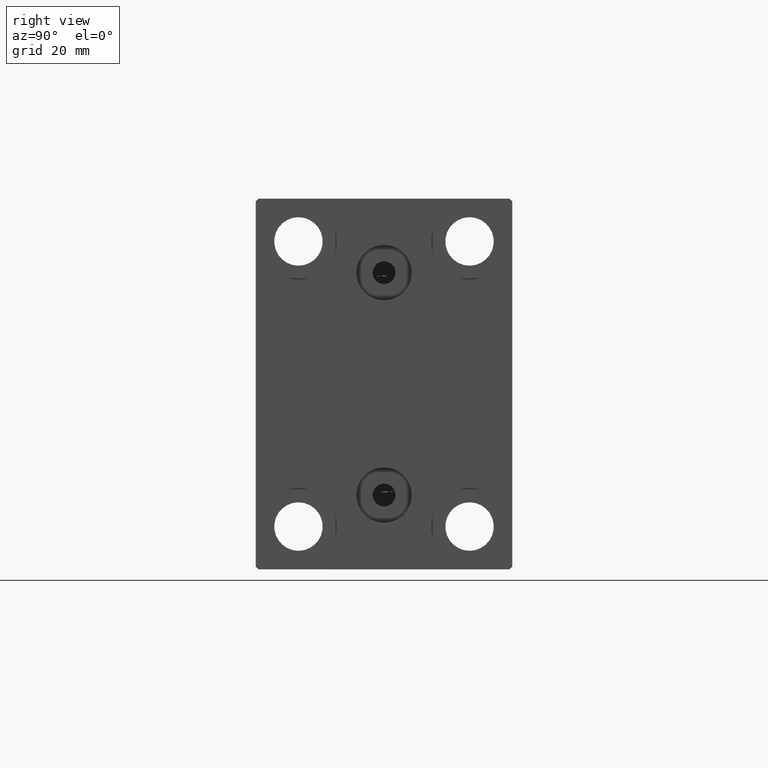
[diagram: clean part render]
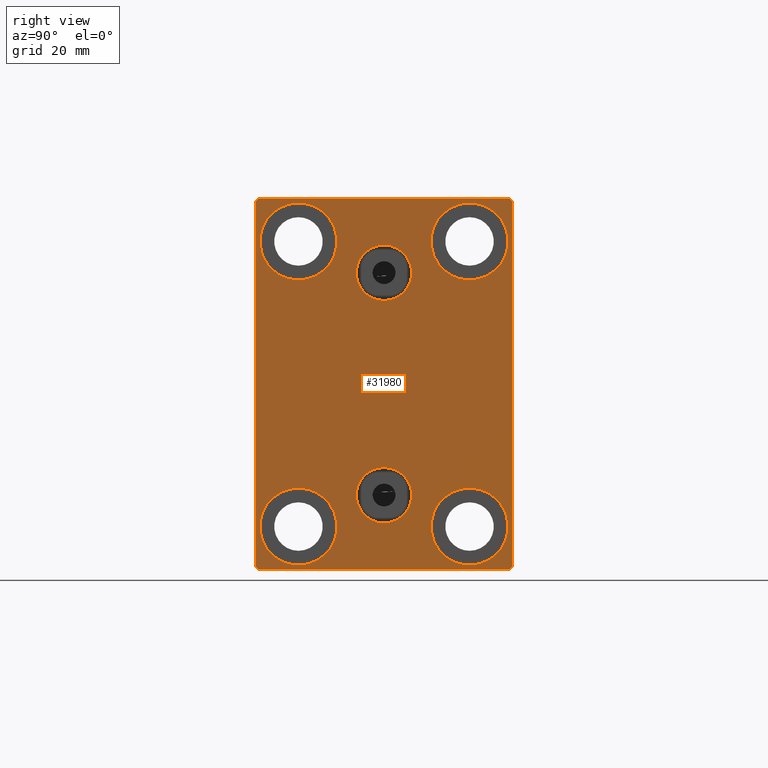
[diagram: same view with one face highlighted and labeled with its STEP entity id]
A machine part, right view. The second image highlights one B-rep face of the part: STEP entity #31980.
In plain terms, the highlighted planar face has unit normal (1, 0, 0).
Its self-contained STEP definition (entity closure, byte-faithful):
#41 = ORIENTED_EDGE ( 'NONE', *, *, #14915, .T. ) ;
#108 = CARTESIAN_POINT ( 'NONE',  ( 90.00000000000000000, -22.00000000000002132, -32.50000000000000711 ) ) ;
#372 = DIRECTION ( 'NONE',  ( 0.000000000000000000, 0.000000000000000000, -1.000000000000000000 ) ) ;
#1095 = CARTESIAN_POINT ( 'NONE',  ( 90.00000000000000000, 14.99999999999999645, -25.00000000000000000 ) ) ;
#1415 = ORIENTED_EDGE ( 'NONE', *, *, #14370, .F. ) ;
#2478 = DIRECTION ( 'NONE',  ( -1.000000000000000000, -0.000000000000000000, -0.000000000000000000 ) ) ;
#2570 = DIRECTION ( 'NONE',  ( 0.000000000000000000, -1.067522139062650425E-16, 1.000000000000000000 ) ) ;
#2592 = CIRCLE ( 'NONE', #18832, 6.749999999999999112 ) ;
#2625 = FACE_OUTER_BOUND ( 'NONE', #17699, .T. ) ;
#2682 = CARTESIAN_POINT ( 'NONE',  ( 90.00000000000000000, -27.25000000000061817, -27.24999999999910827 ) ) ;
#2919 = EDGE_CURVE ( 'NONE', #18833, #16570, #4386, .T. ) ;
#2925 = DIRECTION ( 'NONE',  ( 0.000000000000000000, 0.000000000000000000, -1.000000000000000000 ) ) ;
#2963 = AXIS2_PLACEMENT_3D ( 'NONE', #12396, #25906, #6171 ) ;
#2973 = ORIENTED_EDGE ( 'NONE', *, *, #32748, .T. ) ;
#3980 = CARTESIAN_POINT ( 'NONE',  ( 90.00000000000000000, 2.983239602722951428E-15, -14.63999999999999702 ) ) ;
#4386 = CIRCLE ( 'NONE', #5833, 4.859999999999999432 ) ;
#4441 = AXIS2_PLACEMENT_3D ( 'NONE', #6195, #9742, #18821 ) ;
#4449 = CARTESIAN_POINT ( 'NONE',  ( 90.00000000000000000, 14.99999999999999645, -31.75000000000000000 ) ) ;
#4555 = CARTESIAN_POINT ( 'NONE',  ( 90.00000000000000000, -3.571693674697836683E-15, 19.50000000000000355 ) ) ;
#5030 = CARTESIAN_POINT ( 'NONE',  ( 90.00000000000000000, -27.24999999999984368, 27.25000000000022382 ) ) ;
#5196 = VERTEX_POINT ( 'NONE', #35276 ) ;
#5400 = VECTOR ( 'NONE', #31681, 1000.000000000000000 ) ;
#5639 = EDGE_CURVE ( 'NONE', #16570, #18833, #17208, .T. ) ;
#5739 = FACE_BOUND ( 'NONE', #24812, .T. ) ;
#5833 = AXIS2_PLACEMENT_3D ( 'NONE', #42417, #12082, #42196 ) ;
#6171 = DIRECTION ( 'NONE',  ( 0.000000000000000000, 0.000000000000000000, -1.000000000000000000 ) ) ;
#6195 = CARTESIAN_POINT ( 'NONE',  ( 90.00000000000000000, 2.388061258337338150E-15, -19.49999999999999645 ) ) ;
#6803 = EDGE_CURVE ( 'NONE', #27836, #32145, #7330, .T. ) ;
#6823 = CARTESIAN_POINT ( 'NONE',  ( 90.00000000000000000, -14.99999999999999645, 25.00000000000000000 ) ) ;
#7330 = CIRCLE ( 'NONE', #38445, 6.749999999999999112 ) ;
#7403 = CARTESIAN_POINT ( 'NONE',  ( 90.00000000000000000, 2.388061258337338150E-15, -24.35999999999999588 ) ) ;
#7704 = LINE ( 'NONE', #21229, #30705 ) ;
#7847 = AXIS2_PLACEMENT_3D ( 'NONE', #1095, #18578, #25234 ) ;
#8051 = CARTESIAN_POINT ( 'NONE',  ( 90.00000000000000000, -21.99999999999998579, 32.49999999999999289 ) ) ;
#8405 = ORIENTED_EDGE ( 'NONE', *, *, #28974, .T. ) ;
#8479 = ORIENTED_EDGE ( 'NONE', *, *, #5639, .F. ) ;
#8948 = VERTEX_POINT ( 'NONE', #12113 ) ;
#9707 = CARTESIAN_POINT ( 'NONE',  ( 90.00000000000000000, 15.00000000000000355, 25.00000000000000000 ) ) ;
#9742 = DIRECTION ( 'NONE',  ( 1.000000000000000000, 0.000000000000000000, -0.000000000000000000 ) ) ;
#10531 = VERTEX_POINT ( 'NONE', #17174 ) ;
#10561 = AXIS2_PLACEMENT_3D ( 'NONE', #13110, #40332, #33042 ) ;
#11031 = EDGE_CURVE ( 'NONE', #39635, #8948, #2592, .T. ) ;
#11216 = VECTOR ( 'NONE', #30797, 1000.000000000000000 ) ;
#11278 = AXIS2_PLACEMENT_3D ( 'NONE', #22981, #36483, #29835 ) ;
#11305 = CARTESIAN_POINT ( 'NONE',  ( 90.00000000000000000, 27.25000000000045475, 27.24999999999932143 ) ) ;
#11426 = LINE ( 'NONE', #42200, #37120 ) ;
#11477 = CARTESIAN_POINT ( 'NONE',  ( 90.00000000000000000, 22.49999999999999289, 31.99999999999997868 ) ) ;
#11883 = EDGE_CURVE ( 'NONE', #35381, #10531, #35435, .T. ) ;
#11938 = LINE ( 'NONE', #38953, #35311 ) ;
#12082 = DIRECTION ( 'NONE',  ( 1.000000000000000000, 0.000000000000000000, -0.000000000000000000 ) ) ;
#12113 = CARTESIAN_POINT ( 'NONE',  ( 90.00000000000000000, -14.99999999999999645, 18.25000000000000355 ) ) ;
#12288 = CARTESIAN_POINT ( 'NONE',  ( 90.00000000000000000, 14.99999999999999645, -25.00000000000000000 ) ) ;
#12396 = CARTESIAN_POINT ( 'NONE',  ( 90.00000000000000000, 0.000000000000000000, 0.000000000000000000 ) ) ;
#12609 = VERTEX_POINT ( 'NONE', #15260 ) ;
#12614 = CARTESIAN_POINT ( 'NONE',  ( 90.00000000000000000, 15.00000000000000355, 31.75000000000000000 ) ) ;
#12844 = CARTESIAN_POINT ( 'NONE',  ( 90.00000000000000000, -22.50000000000000711, 31.99999999999999289 ) ) ;
#13110 = CARTESIAN_POINT ( 'NONE',  ( 90.00000000000000000, -15.00000000000000355, -25.00000000000000000 ) ) ;
#14307 = AXIS2_PLACEMENT_3D ( 'NONE', #12288, #19371, #32891 ) ;
#14370 = EDGE_CURVE ( 'NONE', #35289, #22058, #28830, .T. ) ;
#14915 = EDGE_CURVE ( 'NONE', #5196, #41459, #29573, .T. ) ;
#15260 = CARTESIAN_POINT ( 'NONE',  ( 90.00000000000000000, 14.99999999999999645, -18.25000000000000355 ) ) ;
#15521 = EDGE_CURVE ( 'NONE', #22058, #35289, #21090, .T. ) ;
#15524 = ORIENTED_EDGE ( 'NONE', *, *, #18975, .T. ) ;
#16274 = DIRECTION ( 'NONE',  ( 0.000000000000000000, 0.000000000000000000, 1.000000000000000000 ) ) ;
#16292 = VERTEX_POINT ( 'NONE', #33902 ) ;
#16447 = VERTEX_POINT ( 'NONE', #108 ) ;
#16570 = VERTEX_POINT ( 'NONE', #7403 ) ;
#16748 = CARTESIAN_POINT ( 'NONE',  ( 90.00000000000000000, 15.00000000000000355, 25.00000000000000000 ) ) ;
#17093 = VECTOR ( 'NONE', #2570, 1000.000000000000000 ) ;
#17174 = CARTESIAN_POINT ( 'NONE',  ( 90.00000000000000000, 21.99999999999999289, 32.50000000000000000 ) ) ;
#17208 = CIRCLE ( 'NONE', #4441, 4.859999999999999432 ) ;
#17658 = CIRCLE ( 'NONE', #11278, 6.749999999999999112 ) ;
#17699 = EDGE_LOOP ( 'NONE', ( #15524, #36732, #20664, #34698, #31065, #20112, #42212, #37053 ) ) ;
#17914 = EDGE_CURVE ( 'NONE', #33263, #23395, #37223, .T. ) ;
#18353 = DIRECTION ( 'NONE',  ( 0.000000000000000000, -1.000000000000000000, -1.541976423090495387E-16 ) ) ;
#18578 = DIRECTION ( 'NONE',  ( -1.000000000000000000, -0.000000000000000000, -0.000000000000000000 ) ) ;
#18821 = DIRECTION ( 'NONE',  ( 0.000000000000000000, 0.000000000000000000, 1.000000000000000000 ) ) ;
#18832 = AXIS2_PLACEMENT_3D ( 'NONE', #6823, #2478, #33864 ) ;
#18833 = VERTEX_POINT ( 'NONE', #3980 ) ;
#18975 = EDGE_CURVE ( 'NONE', #10531, #26436, #11938, .T. ) ;
#19022 = FACE_BOUND ( 'NONE', #34141, .T. ) ;
#19152 = CIRCLE ( 'NONE', #7847, 6.749999999999999112 ) ;
#19371 = DIRECTION ( 'NONE',  ( -1.000000000000000000, -0.000000000000000000, -0.000000000000000000 ) ) ;
#19527 = DIRECTION ( 'NONE',  ( -0.000000000000000000, 0.7071067811865279218, -0.7071067811865671127 ) ) ;
#19894 = ORIENTED_EDGE ( 'NONE', *, *, #11031, .T. ) ;
#20112 = ORIENTED_EDGE ( 'NONE', *, *, #41616, .T. ) ;
#20664 = ORIENTED_EDGE ( 'NONE', *, *, #17914, .T. ) ;
#21059 = ORIENTED_EDGE ( 'NONE', *, *, #6803, .T. ) ;
#21090 = CIRCLE ( 'NONE', #33123, 4.859999999999999432 ) ;
#21229 = CARTESIAN_POINT ( 'NONE',  ( 90.00000000000000000, 27.24999999999985434, -27.25000000000023093 ) ) ;
#21872 = LINE ( 'NONE', #5030, #31422 ) ;
#22058 = VERTEX_POINT ( 'NONE', #22563 ) ;
#22491 = AXIS2_PLACEMENT_3D ( 'NONE', #42865, #39543, #16274 ) ;
#22563 = CARTESIAN_POINT ( 'NONE',  ( 90.00000000000000000, -2.976515330312223406E-15, 24.36000000000000298 ) ) ;
#22981 = CARTESIAN_POINT ( 'NONE',  ( 90.00000000000000000, -14.99999999999999645, 25.00000000000000000 ) ) ;
#23025 = FACE_BOUND ( 'NONE', #26389, .T. ) ;
#23146 = EDGE_CURVE ( 'NONE', #41459, #5196, #31077, .T. ) ;
#23237 = FACE_BOUND ( 'NONE', #29753, .T. ) ;
#23327 = ORIENTED_EDGE ( 'NONE', *, *, #2919, .F. ) ;
#23395 = VERTEX_POINT ( 'NONE', #25456 ) ;
#24301 = DIRECTION ( 'NONE',  ( 1.000000000000000000, 0.000000000000000000, 0.000000000000000000 ) ) ;
#24517 = EDGE_CURVE ( 'NONE', #8948, #39635, #17658, .T. ) ;
#24812 = EDGE_LOOP ( 'NONE', ( #1415, #27557 ) ) ;
#25228 = ORIENTED_EDGE ( 'NONE', *, *, #38023, .T. ) ;
#25234 = DIRECTION ( 'NONE',  ( 0.000000000000000000, 0.000000000000000000, 1.000000000000000000 ) ) ;
#25456 = CARTESIAN_POINT ( 'NONE',  ( 90.00000000000000000, -22.50000000000000711, -31.99999999999999289 ) ) ;
#25906 = DIRECTION ( 'NONE',  ( 1.000000000000000000, 0.000000000000000000, 0.000000000000000000 ) ) ;
#26291 = LINE ( 'NONE', #39789, #17093 ) ;
#26389 = EDGE_LOOP ( 'NONE', ( #34637, #19894 ) ) ;
#26436 = VERTEX_POINT ( 'NONE', #8051 ) ;
#26724 = VERTEX_POINT ( 'NONE', #4449 ) ;
#26777 = CARTESIAN_POINT ( 'NONE',  ( 90.00000000000000000, 15.00000000000000355, 18.25000000000000355 ) ) ;
#27414 = ORIENTED_EDGE ( 'NONE', *, *, #23146, .T. ) ;
#27557 = ORIENTED_EDGE ( 'NONE', *, *, #15521, .F. ) ;
#27663 = VECTOR ( 'NONE', #19527, 1000.000000000000000 ) ;
#27836 = VERTEX_POINT ( 'NONE', #26777 ) ;
#28830 = CIRCLE ( 'NONE', #43675, 4.859999999999999432 ) ;
#28849 = EDGE_CURVE ( 'NONE', #23395, #16447, #39906, .T. ) ;
#28974 = EDGE_CURVE ( 'NONE', #26724, #12609, #19152, .T. ) ;
#29077 = DIRECTION ( 'NONE',  ( 1.000000000000000000, 0.000000000000000000, 0.000000000000000000 ) ) ;
#29573 = CIRCLE ( 'NONE', #22491, 6.749999999999999112 ) ;
#29586 = VERTEX_POINT ( 'NONE', #35476 ) ;
#29753 = EDGE_LOOP ( 'NONE', ( #8405, #2973 ) ) ;
#29835 = DIRECTION ( 'NONE',  ( 0.000000000000000000, 0.000000000000000000, 1.000000000000000000 ) ) ;
#30269 = DIRECTION ( 'NONE',  ( -1.000000000000000000, -0.000000000000000000, -0.000000000000000000 ) ) ;
#30705 = VECTOR ( 'NONE', #34956, 1000.000000000000000 ) ;
#30737 = AXIS2_PLACEMENT_3D ( 'NONE', #16748, #30269, #37346 ) ;
#30797 = DIRECTION ( 'NONE',  ( 0.000000000000000000, 0.000000000000000000, -1.000000000000000000 ) ) ;
#31065 = ORIENTED_EDGE ( 'NONE', *, *, #43136, .T. ) ;
#31077 = CIRCLE ( 'NONE', #10561, 6.749999999999999112 ) ;
#31422 = VECTOR ( 'NONE', #35387, 999.9999999999998863 ) ;
#31625 = EDGE_CURVE ( 'NONE', #16292, #35381, #26291, .T. ) ;
#31681 = DIRECTION ( 'NONE',  ( -0.000000000000000000, -0.7071067811865328068, 0.7071067811865622277 ) ) ;
#31980 = ADVANCED_FACE ( 'NONE', ( #5739, #39406, #23237, #23025, #19022, #32985, #2625 ), #43162, .T. ) ;
#32145 = VERTEX_POINT ( 'NONE', #12614 ) ;
#32333 = EDGE_LOOP ( 'NONE', ( #8479, #23327 ) ) ;
#32748 = EDGE_CURVE ( 'NONE', #12609, #26724, #43309, .T. ) ;
#32891 = DIRECTION ( 'NONE',  ( 0.000000000000000000, 0.000000000000000000, 1.000000000000000000 ) ) ;
#32985 = FACE_BOUND ( 'NONE', #36889, .T. ) ;
#33042 = DIRECTION ( 'NONE',  ( 0.000000000000000000, 0.000000000000000000, 1.000000000000000000 ) ) ;
#33123 = AXIS2_PLACEMENT_3D ( 'NONE', #4555, #24301, #372 ) ;
#33263 = VERTEX_POINT ( 'NONE', #12844 ) ;
#33291 = CARTESIAN_POINT ( 'NONE',  ( 90.00000000000000000, -3.571693674697836683E-15, 19.50000000000000355 ) ) ;
#33455 = CARTESIAN_POINT ( 'NONE',  ( 90.00000000000000000, -3.571693674697836683E-15, 14.64000000000000412 ) ) ;
#33864 = DIRECTION ( 'NONE',  ( 0.000000000000000000, 0.000000000000000000, 1.000000000000000000 ) ) ;
#33902 = CARTESIAN_POINT ( 'NONE',  ( 90.00000000000000000, 22.50000000000000000, -32.00000000000002132 ) ) ;
#34141 = EDGE_LOOP ( 'NONE', ( #21059, #25228 ) ) ;
#34308 = CARTESIAN_POINT ( 'NONE',  ( 90.00000000000000000, -14.99999999999999645, 31.75000000000000000 ) ) ;
#34637 = ORIENTED_EDGE ( 'NONE', *, *, #24517, .T. ) ;
#34698 = ORIENTED_EDGE ( 'NONE', *, *, #28849, .T. ) ;
#34956 = DIRECTION ( 'NONE',  ( -0.000000000000000000, 0.7071067811865524577, 0.7071067811865426878 ) ) ;
#35276 = CARTESIAN_POINT ( 'NONE',  ( 90.00000000000000000, -15.00000000000000355, -18.25000000000000355 ) ) ;
#35289 = VERTEX_POINT ( 'NONE', #33455 ) ;
#35311 = VECTOR ( 'NONE', #18353, 1000.000000000000000 ) ;
#35381 = VERTEX_POINT ( 'NONE', #11477 ) ;
#35387 = DIRECTION ( 'NONE',  ( 0.000000000000000000, -0.7071067811865525687, -0.7071067811865425767 ) ) ;
#35435 = LINE ( 'NONE', #11305, #5400 ) ;
#35436 = CARTESIAN_POINT ( 'NONE',  ( 90.00000000000000000, -15.00000000000000355, -31.75000000000000000 ) ) ;
#35476 = CARTESIAN_POINT ( 'NONE',  ( 90.00000000000000000, 21.99999999999999289, -32.50000000000000711 ) ) ;
#36483 = DIRECTION ( 'NONE',  ( -1.000000000000000000, -0.000000000000000000, -0.000000000000000000 ) ) ;
#36731 = DIRECTION ( 'NONE',  ( 0.000000000000000000, 0.000000000000000000, 1.000000000000000000 ) ) ;
#36732 = ORIENTED_EDGE ( 'NONE', *, *, #41657, .T. ) ;
#36889 = EDGE_LOOP ( 'NONE', ( #27414, #41 ) ) ;
#37003 = CARTESIAN_POINT ( 'NONE',  ( 90.00000000000000000, -22.50000000000000711, 32.49999999999999289 ) ) ;
#37053 = ORIENTED_EDGE ( 'NONE', *, *, #11883, .T. ) ;
#37120 = VECTOR ( 'NONE', #37801, 1000.000000000000000 ) ;
#37223 = LINE ( 'NONE', #37003, #11216 ) ;
#37346 = DIRECTION ( 'NONE',  ( 0.000000000000000000, 0.000000000000000000, 1.000000000000000000 ) ) ;
#37801 = DIRECTION ( 'NONE',  ( 0.000000000000000000, 1.000000000000000000, 0.000000000000000000 ) ) ;
#38023 = EDGE_CURVE ( 'NONE', #32145, #27836, #43442, .T. ) ;
#38445 = AXIS2_PLACEMENT_3D ( 'NONE', #9707, #40052, #36731 ) ;
#38953 = CARTESIAN_POINT ( 'NONE',  ( 90.00000000000000000, 22.49999999999999289, 32.50000000000000000 ) ) ;
#39406 = FACE_BOUND ( 'NONE', #32333, .T. ) ;
#39543 = DIRECTION ( 'NONE',  ( -1.000000000000000000, -0.000000000000000000, -0.000000000000000000 ) ) ;
#39635 = VERTEX_POINT ( 'NONE', #34308 ) ;
#39789 = CARTESIAN_POINT ( 'NONE',  ( 90.00000000000000000, 22.50000000000000000, -32.50000000000000711 ) ) ;
#39906 = LINE ( 'NONE', #2682, #27663 ) ;
#40052 = DIRECTION ( 'NONE',  ( -1.000000000000000000, -0.000000000000000000, -0.000000000000000000 ) ) ;
#40332 = DIRECTION ( 'NONE',  ( -1.000000000000000000, -0.000000000000000000, -0.000000000000000000 ) ) ;
#41459 = VERTEX_POINT ( 'NONE', #35436 ) ;
#41616 = EDGE_CURVE ( 'NONE', #29586, #16292, #7704, .T. ) ;
#41657 = EDGE_CURVE ( 'NONE', #26436, #33263, #21872, .T. ) ;
#42196 = DIRECTION ( 'NONE',  ( 0.000000000000000000, 0.000000000000000000, 1.000000000000000000 ) ) ;
#42200 = CARTESIAN_POINT ( 'NONE',  ( 90.00000000000000000, -22.50000000000000711, -32.50000000000000711 ) ) ;
#42212 = ORIENTED_EDGE ( 'NONE', *, *, #31625, .T. ) ;
#42417 = CARTESIAN_POINT ( 'NONE',  ( 90.00000000000000000, 2.388061258337338150E-15, -19.49999999999999645 ) ) ;
#42865 = CARTESIAN_POINT ( 'NONE',  ( 90.00000000000000000, -15.00000000000000355, -25.00000000000000000 ) ) ;
#43136 = EDGE_CURVE ( 'NONE', #16447, #29586, #11426, .T. ) ;
#43162 = PLANE ( 'NONE',  #2963 ) ;
#43309 = CIRCLE ( 'NONE', #14307, 6.749999999999999112 ) ;
#43442 = CIRCLE ( 'NONE', #30737, 6.749999999999999112 ) ;
#43675 = AXIS2_PLACEMENT_3D ( 'NONE', #33291, #29077, #2925 ) ;